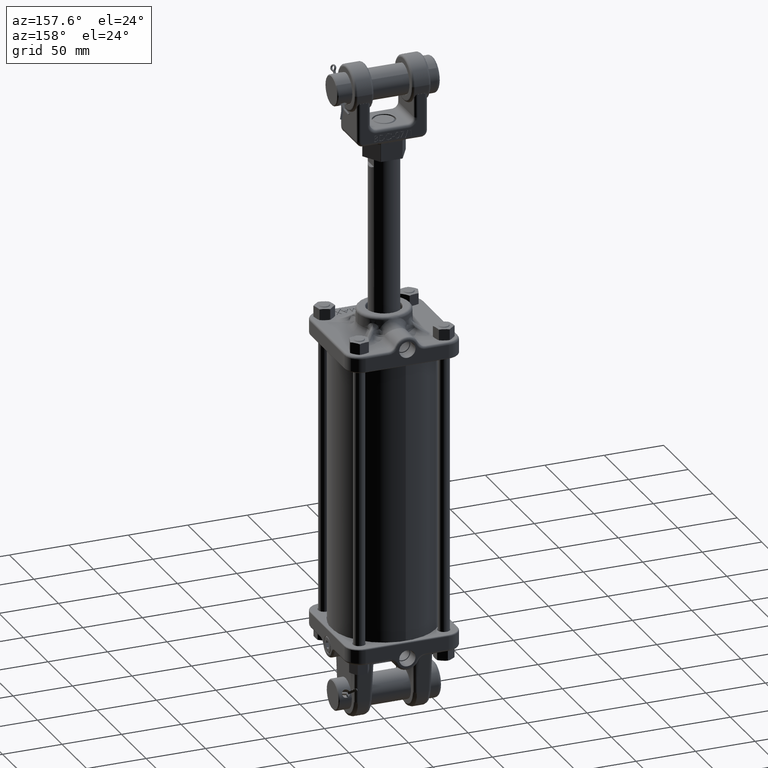
[diagram: clean part render]
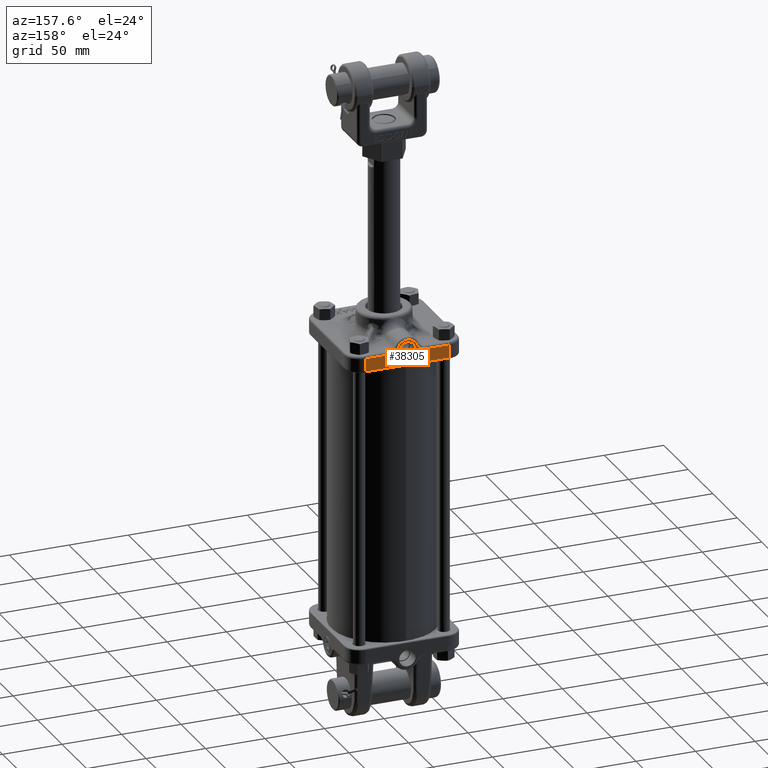
[diagram: same view with one face highlighted and labeled with its STEP entity id]
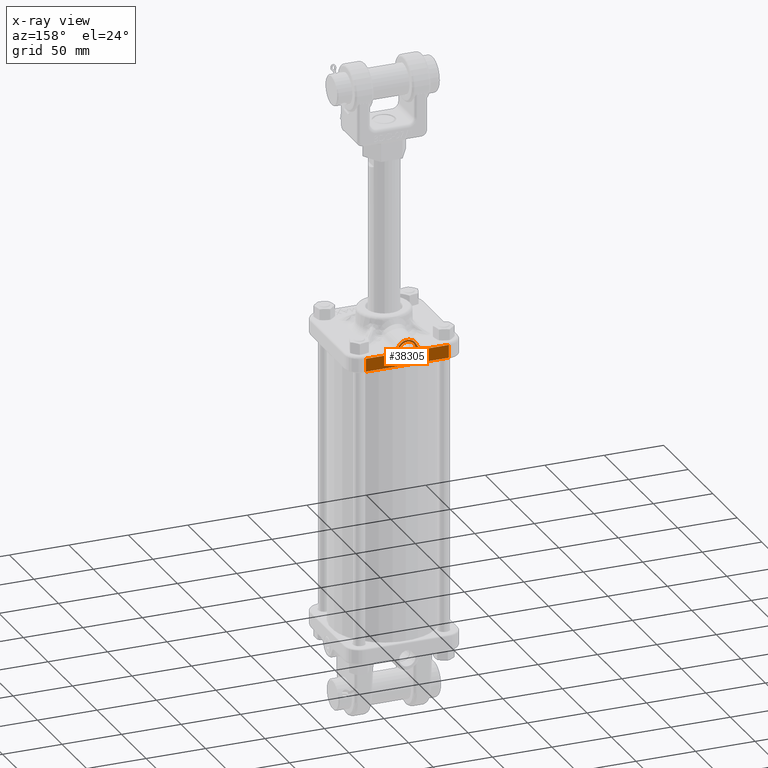
[diagram: x-ray of the same camera — body ghosted, the highlighted face saturated]
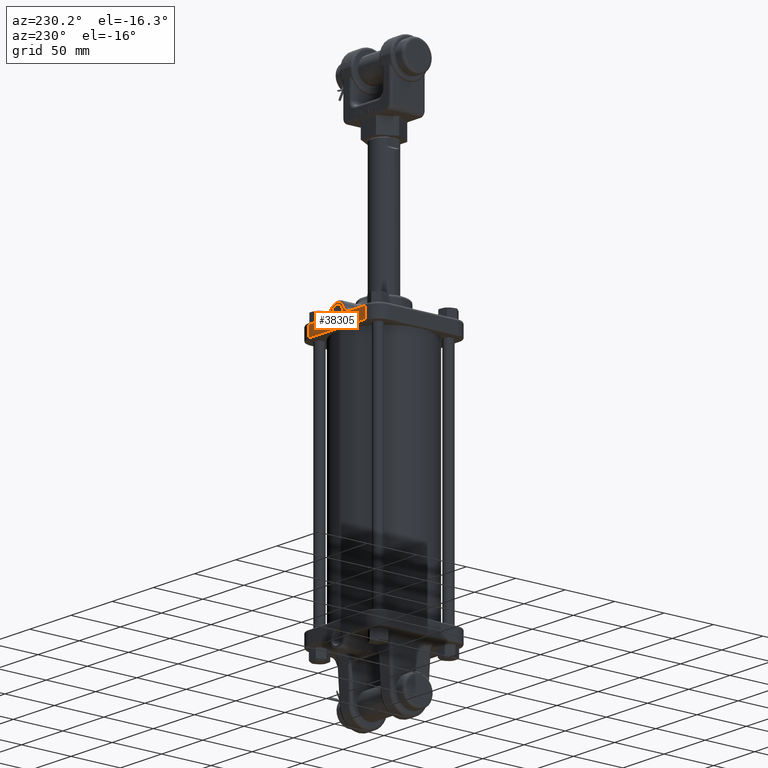
[diagram: same view with one face highlighted and labeled with its STEP entity id]
A machine part, auxiliary view. The second image highlights one B-rep face of the part: STEP entity #38305.
The next image is the same camera in x-ray: the body ghosted, the highlighted face saturated — about 0% of this face is hidden behind the body in this view.
A second angle (auxiliary view) of the same face is appended — the face is thin or edge-on in the first view.
In plain terms, the highlighted planar face has unit normal (0, -1, 0).
Its self-contained STEP definition (entity closure, byte-faithful):
#548 = AXIS2_PLACEMENT_3D ( 'NONE', #18702, #39469, #14996 ) ;
#860 = CARTESIAN_POINT ( 'NONE',  ( -0.6066300355241247555, 1.874999999999999778, 0.4700000000000000289 ) ) ;
#1299 = VECTOR ( 'NONE', #38154, 39.37007874015748143 ) ;
#2167 = EDGE_LOOP ( 'NONE', ( #23989, #24619 ) ) ;
#2310 = DIRECTION ( 'NONE',  ( 0.000000000000000000, 0.000000000000000000, 1.000000000000000000 ) ) ;
#2699 = DIRECTION ( 'NONE',  ( -0.000000000000000000, 1.000000000000000000, -0.000000000000000000 ) ) ;
#2845 = EDGE_CURVE ( 'NONE', #42029, #10681, #30968, .T. ) ;
#3141 = CARTESIAN_POINT ( 'NONE',  ( -2.070538722124691732E-16, 1.874999999999999778, 0.5400000000000003686 ) ) ;
#3402 = CARTESIAN_POINT ( 'NONE',  ( -1.375000000000000000, 1.874999999999999556, 0.03999999999999998002 ) ) ;
#3423 = EDGE_CURVE ( 'NONE', #36597, #18400, #4950, .T. ) ;
#4047 = DIRECTION ( 'NONE',  ( -1.000000000000000000, -1.456985596620940383E-16, 0.000000000000000000 ) ) ;
#4830 = EDGE_CURVE ( 'NONE', #43783, #33217, #28799, .T. ) ;
#4950 = CIRCLE ( 'NONE', #548, 0.3300000000000000155 ) ;
#5150 = AXIS2_PLACEMENT_3D ( 'NONE', #3141, #2699, #27165 ) ;
#6100 = CARTESIAN_POINT ( 'NONE',  ( -0.6066300355241244224, 1.874999999999999778, 0.8000000000000000444 ) ) ;
#6124 = AXIS2_PLACEMENT_3D ( 'NONE', #6100, #13491, #20868 ) ;
#6646 = DIRECTION ( 'NONE',  ( 1.000000000000000000, 1.456985596620940383E-16, -0.000000000000000000 ) ) ;
#8998 = CARTESIAN_POINT ( 'NONE',  ( -2.070538722124691732E-16, 1.874999999999999778, 0.8098655000000003490 ) ) ;
#10681 = VERTEX_POINT ( 'NONE', #8998 ) ;
#13166 = CARTESIAN_POINT ( 'NONE',  ( -2.070538722124691732E-16, 1.874999999999999778, 0.5400000000000003686 ) ) ;
#13491 = DIRECTION ( 'NONE',  ( 1.456985596620940383E-16, -1.000000000000000000, 0.000000000000000000 ) ) ;
#13593 = AXIS2_PLACEMENT_3D ( 'NONE', #13771, #27847, #20917 ) ;
#13771 = CARTESIAN_POINT ( 'NONE',  ( 0.6066300355241240894, 1.874999999999999778, 0.8000000000000000444 ) ) ;
#13848 = ORIENTED_EDGE ( 'NONE', *, *, #30051, .T. ) ;
#14373 = CARTESIAN_POINT ( 'NONE',  ( -1.375000000000000000, 1.874999999999999556, 0.5500000000000000444 ) ) ;
#14742 = ORIENTED_EDGE ( 'NONE', *, *, #27706, .T. ) ;
#14996 = DIRECTION ( 'NONE',  ( 1.000000000000000000, 0.000000000000000000, 0.000000000000000000 ) ) ;
#15641 = DIRECTION ( 'NONE',  ( 1.000000000000000000, 1.456985596620940383E-16, -0.000000000000000000 ) ) ;
#16325 = VECTOR ( 'NONE', #32583, 39.37007874015748143 ) ;
#18061 = CARTESIAN_POINT ( 'NONE',  ( 0.3033150177620619337, 1.874999999999999778, 0.6700000000000002620 ) ) ;
#18136 = AXIS2_PLACEMENT_3D ( 'NONE', #21312, #25014, #34928 ) ;
#18400 = VERTEX_POINT ( 'NONE', #18061 ) ;
#18702 = CARTESIAN_POINT ( 'NONE',  ( -2.070538722124691979E-16, 1.874999999999999778, 0.5400000000000003686 ) ) ;
#19786 = EDGE_CURVE ( 'NONE', #38071, #43783, #21517, .T. ) ;
#20868 = DIRECTION ( 'NONE',  ( 1.000000000000000000, 0.000000000000000000, 0.000000000000000000 ) ) ;
#20917 = DIRECTION ( 'NONE',  ( 1.000000000000000000, 0.000000000000000000, 0.000000000000000000 ) ) ;
#21094 = CARTESIAN_POINT ( 'NONE',  ( 0.6066300355241240894, 1.874999999999999778, 0.4700000000000000289 ) ) ;
#21312 = CARTESIAN_POINT ( 'NONE',  ( 1.875000000000000000, 1.875000000000000000, 0.5500000000000000444 ) ) ;
#21517 = LINE ( 'NONE', #14373, #16325 ) ;
#21617 = ORIENTED_EDGE ( 'NONE', *, *, #19786, .T. ) ;
#22896 = VERTEX_POINT ( 'NONE', #31528 ) ;
#23180 = VECTOR ( 'NONE', #4047, 39.37007874015748143 ) ;
#23232 = AXIS2_PLACEMENT_3D ( 'NONE', #13166, #27246, #2310 ) ;
#23989 = ORIENTED_EDGE ( 'NONE', *, *, #37058, .F. ) ;
#24619 = ORIENTED_EDGE ( 'NONE', *, *, #2845, .F. ) ;
#25014 = DIRECTION ( 'NONE',  ( 1.456985596620940383E-16, -1.000000000000000000, 0.000000000000000000 ) ) ;
#25063 = EDGE_CURVE ( 'NONE', #18400, #25503, #37942, .T. ) ;
#25503 = VERTEX_POINT ( 'NONE', #21094 ) ;
#25990 = CARTESIAN_POINT ( 'NONE',  ( -0.6066300355241244224, 1.874999999999999778, 0.4700000000000000289 ) ) ;
#25998 = EDGE_LOOP ( 'NONE', ( #36179, #43982, #21617, #39013, #14742, #27041, #43949, #13848 ) ) ;
#26398 = CARTESIAN_POINT ( 'NONE',  ( -1.740048801349391704E-16, 1.874999999999999778, 0.2701345000000004437 ) ) ;
#27041 = ORIENTED_EDGE ( 'NONE', *, *, #3423, .T. ) ;
#27165 = DIRECTION ( 'NONE',  ( 0.000000000000000000, 0.000000000000000000, 1.000000000000000000 ) ) ;
#27246 = DIRECTION ( 'NONE',  ( -0.000000000000000000, 1.000000000000000000, -0.000000000000000000 ) ) ;
#27670 = LINE ( 'NONE', #44745, #28162 ) ;
#27706 = EDGE_CURVE ( 'NONE', #33217, #36597, #28260, .T. ) ;
#27847 = DIRECTION ( 'NONE',  ( 1.456985596620940383E-16, -1.000000000000000000, 0.000000000000000000 ) ) ;
#28162 = VECTOR ( 'NONE', #6646, 39.37007874015748143 ) ;
#28260 = CIRCLE ( 'NONE', #6124, 0.3300000000000000155 ) ;
#28799 = LINE ( 'NONE', #860, #33927 ) ;
#30051 = EDGE_CURVE ( 'NONE', #25503, #22896, #27670, .T. ) ;
#30968 = CIRCLE ( 'NONE', #5150, 0.2698654999999999804 ) ;
#30986 = CARTESIAN_POINT ( 'NONE',  ( 1.375000000000000000, 1.875000000000000000, 0.5500000000000000444 ) ) ;
#31528 = CARTESIAN_POINT ( 'NONE',  ( 1.375000000000000000, 1.875000000000000000, 0.4700000000000000289 ) ) ;
#32583 = DIRECTION ( 'NONE',  ( -0.000000000000000000, -0.000000000000000000, 1.000000000000000000 ) ) ;
#32668 = LINE ( 'NONE', #42819, #23180 ) ;
#33217 = VERTEX_POINT ( 'NONE', #25990 ) ;
#33927 = VECTOR ( 'NONE', #15641, 39.37007874015748143 ) ;
#34928 = DIRECTION ( 'NONE',  ( 1.000000000000000000, 1.456985596620940383E-16, 0.000000000000000000 ) ) ;
#35910 = VERTEX_POINT ( 'NONE', #41255 ) ;
#36071 = CARTESIAN_POINT ( 'NONE',  ( -0.3033150177620622667, 1.874999999999999778, 0.6700000000000003730 ) ) ;
#36179 = ORIENTED_EDGE ( 'NONE', *, *, #45410, .T. ) ;
#36597 = VERTEX_POINT ( 'NONE', #36071 ) ;
#36759 = CARTESIAN_POINT ( 'NONE',  ( -1.375000000000000000, 1.874999999999999556, 0.4700000000000000289 ) ) ;
#37058 = EDGE_CURVE ( 'NONE', #10681, #42029, #43100, .T. ) ;
#37546 = FACE_OUTER_BOUND ( 'NONE', #25998, .T. ) ;
#37684 = LINE ( 'NONE', #30986, #1299 ) ;
#37942 = CIRCLE ( 'NONE', #13593, 0.3300000000000000155 ) ;
#38071 = VERTEX_POINT ( 'NONE', #3402 ) ;
#38154 = DIRECTION ( 'NONE',  ( 0.000000000000000000, 0.000000000000000000, -1.000000000000000000 ) ) ;
#38305 = ADVANCED_FACE ( 'NONE', ( #42083, #37546 ), #42534, .F. ) ;
#39013 = ORIENTED_EDGE ( 'NONE', *, *, #4830, .T. ) ;
#39469 = DIRECTION ( 'NONE',  ( -1.456985596620940383E-16, 1.000000000000000000, -0.000000000000000000 ) ) ;
#40144 = EDGE_CURVE ( 'NONE', #35910, #38071, #32668, .T. ) ;
#41255 = CARTESIAN_POINT ( 'NONE',  ( 1.375000000000000000, 1.875000000000000000, 0.03999999999999998002 ) ) ;
#42029 = VERTEX_POINT ( 'NONE', #26398 ) ;
#42083 = FACE_BOUND ( 'NONE', #2167, .T. ) ;
#42534 = PLANE ( 'NONE',  #18136 ) ;
#42819 = CARTESIAN_POINT ( 'NONE',  ( 1.875000000000000000, 1.875000000000000000, 0.03999999999999998002 ) ) ;
#43100 = CIRCLE ( 'NONE', #23232, 0.2698654999999999804 ) ;
#43783 = VERTEX_POINT ( 'NONE', #36759 ) ;
#43949 = ORIENTED_EDGE ( 'NONE', *, *, #25063, .T. ) ;
#43982 = ORIENTED_EDGE ( 'NONE', *, *, #40144, .T. ) ;
#44745 = CARTESIAN_POINT ( 'NONE',  ( 1.375000000000000000, 1.875000000000000000, 0.4700000000000000289 ) ) ;
#45410 = EDGE_CURVE ( 'NONE', #22896, #35910, #37684, .T. ) ;